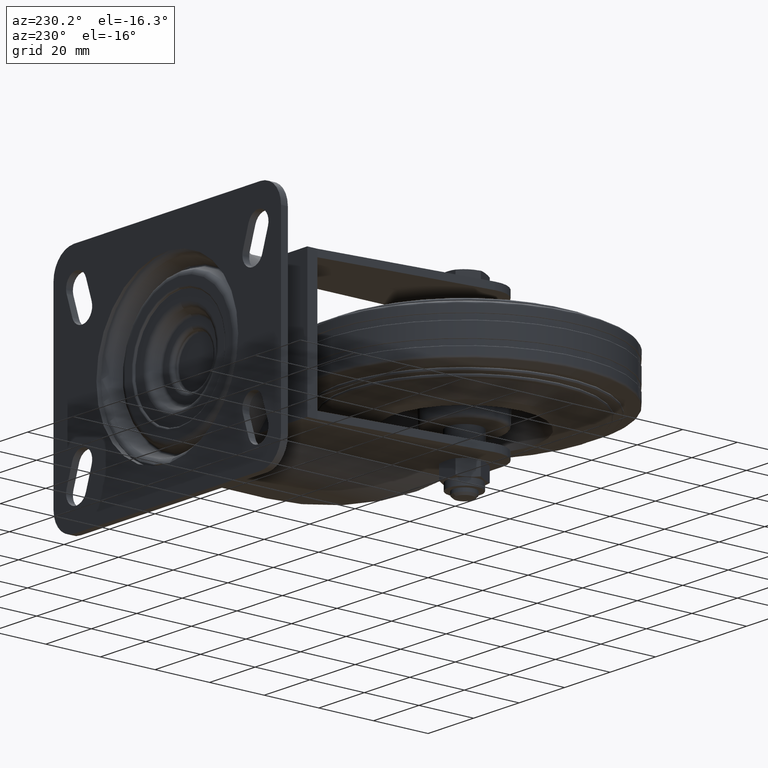
[diagram: clean part render]
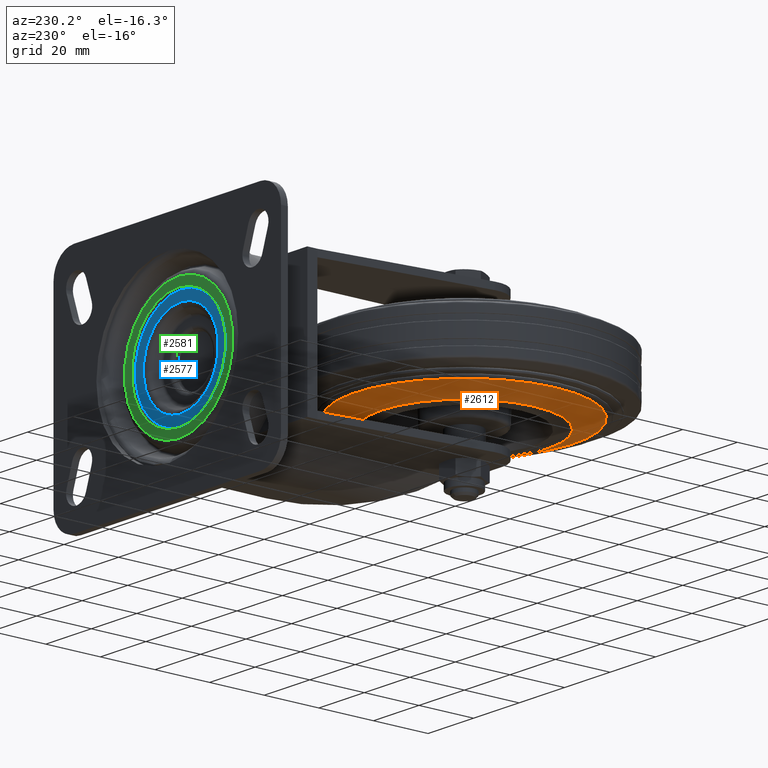
[diagram: same view with three faces highlighted in distinct colors, each labeled with its STEP entity id]
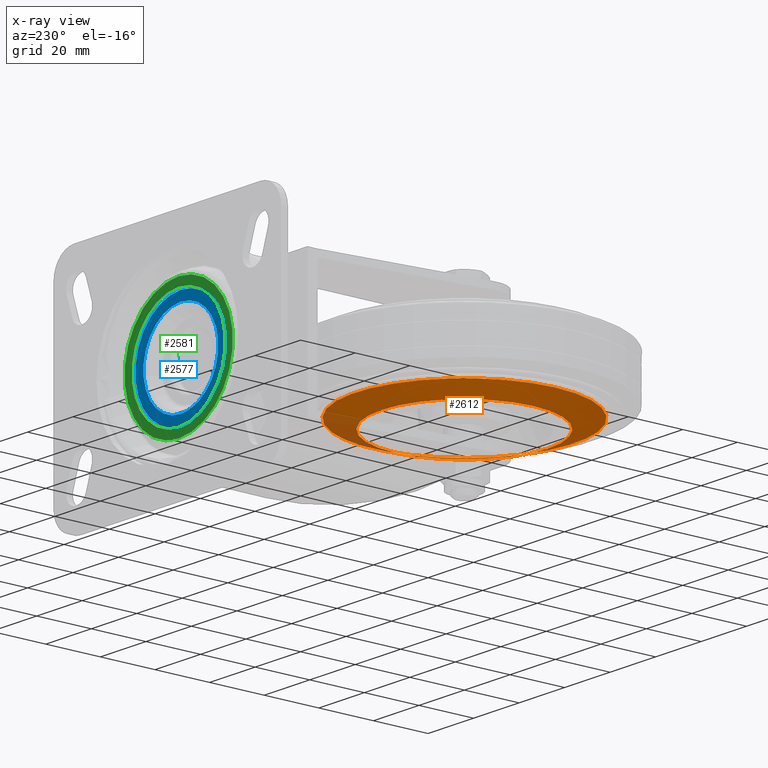
[diagram: x-ray of the same camera — body ghosted, the three highlighted faces saturated]
A machine part, auxiliary view with three faces highlighted in distinct colors.
The next image is the same camera in x-ray (body ghosted, the three faces saturated) — at least one of them is partly hidden behind the body in this view.
Their STEP definitions:

[orange] entity #2612 — the highlighted conical surface has half-angle 71 deg.
#336=LINE('',#4750,#463);
#463=VECTOR('',#3826,30.3955638634393);
#653=FACE_OUTER_BOUND('',#854,.T.);
#854=EDGE_LOOP('',(#2338,#2339,#2340,#2341,#2342));
#1028=CIRCLE('',#3042,30.3955638634393);
#1029=CIRCLE('',#3043,30.3955638634393);
#1030=CIRCLE('',#3045,40.);
#1312=VERTEX_POINT('',#4742);
#1313=VERTEX_POINT('',#4744);
#1314=VERTEX_POINT('',#4748);
#1657=EDGE_CURVE('',#1312,#1313,#1028,.T.);
#1658=EDGE_CURVE('',#1313,#1312,#1029,.T.);
#1659=EDGE_CURVE('',#1314,#1314,#1030,.T.);
#1660=EDGE_CURVE('',#1314,#1313,#336,.T.);
#2338=ORIENTED_EDGE('',*,*,#1659,.T.);
#2339=ORIENTED_EDGE('',*,*,#1660,.T.);
#2340=ORIENTED_EDGE('',*,*,#1657,.F.);
#2341=ORIENTED_EDGE('',*,*,#1658,.F.);
#2342=ORIENTED_EDGE('',*,*,#1660,.F.);
#2464=CONICAL_SURFACE('',#3044,30.3955638634393,1.23918376891597);
#2612=ADVANCED_FACE('',(#653),#2464,.T.);
#3042=AXIS2_PLACEMENT_3D('',#4745,#3818,#3819);
#3043=AXIS2_PLACEMENT_3D('',#4746,#3820,#3821);
#3044=AXIS2_PLACEMENT_3D('',#4747,#3822,#3823);
#3045=AXIS2_PLACEMENT_3D('',#4749,#3824,#3825);
#3818=DIRECTION('center_axis',(6.12323399573677E-17,0.,-1.));
#3819=DIRECTION('ref_axis',(-1.,0.,-6.12323399573677E-17));
#3820=DIRECTION('center_axis',(6.12323399573677E-17,0.,-1.));
#3821=DIRECTION('ref_axis',(-1.,0.,-6.12323399573677E-17));
#3822=DIRECTION('center_axis',(-6.12323399573677E-17,0.,1.));
#3823=DIRECTION('ref_axis',(1.,0.,6.12323399573677E-17));
#3824=DIRECTION('center_axis',(6.12323399573677E-17,0.,-1.));
#3825=DIRECTION('ref_axis',(-1.,0.,-6.12323399573677E-17));
#3826=DIRECTION('',(0.945518575599316,1.15792629714207E-16,-0.32556815445716));
#4742=CARTESIAN_POINT('',(30.3955638634393,-3.72238299936399E-15,-14.8637964389983));
#4744=CARTESIAN_POINT('',(-30.3955638634393,0.,-14.8637964389983));
#4745=CARTESIAN_POINT('Origin',(9.10145036609854E-16,0.,-14.8637964389983));
#4746=CARTESIAN_POINT('Origin',(9.10145036609854E-16,0.,-14.8637964389983));
#4747=CARTESIAN_POINT('Origin',(9.10145036609854E-16,0.,-14.8637964389983));
#4748=CARTESIAN_POINT('',(-40.,0.,-11.5567238671033));
#4749=CARTESIAN_POINT('Origin',(7.07645244623897E-16,0.,-11.5567238671033));
#4750=CARTESIAN_POINT('',(-30.3955638634393,-3.72238299936399E-15,-14.8637964389983));

[blue] entity #2577 — the highlighted planar face has unit normal (0, -1, 0).
#135=FACE_BOUND('',#809,.T.);
#199=PLANE('',#2963);
#618=FACE_OUTER_BOUND('',#808,.T.);
#808=EDGE_LOOP('',(#2205));
#809=EDGE_LOOP('',(#2206));
#983=CIRCLE('',#2961,16.449140521615);
#985=CIRCLE('',#2964,19.975);
#1280=VERTEX_POINT('',#4618);
#1281=VERTEX_POINT('',#4622);
#1600=EDGE_CURVE('',#1280,#1280,#983,.T.);
#1602=EDGE_CURVE('',#1281,#1281,#985,.T.);
#2205=ORIENTED_EDGE('',*,*,#1602,.F.);
#2206=ORIENTED_EDGE('',*,*,#1600,.T.);
#2577=ADVANCED_FACE('',(#618,#135),#199,.F.);
#2961=AXIS2_PLACEMENT_3D('',#4619,#3644,#3645);
#2963=AXIS2_PLACEMENT_3D('',#4621,#3648,#3649);
#2964=AXIS2_PLACEMENT_3D('',#4623,#3650,#3651);
#3644=DIRECTION('center_axis',(0.,-1.,0.));
#3645=DIRECTION('ref_axis',(0.,0.,-1.));
#3648=DIRECTION('center_axis',(0.,-1.,0.));
#3649=DIRECTION('ref_axis',(0.,0.,-1.));
#3650=DIRECTION('center_axis',(0.,-1.,0.));
#3651=DIRECTION('ref_axis',(0.,0.,-1.));
#4618=CARTESIAN_POINT('',(35.,74.7,16.449140521615));
#4619=CARTESIAN_POINT('Origin',(35.,74.7,0.));
#4621=CARTESIAN_POINT('Origin',(51.449140521615,74.7,0.));
#4622=CARTESIAN_POINT('',(35.,74.7,19.975));
#4623=CARTESIAN_POINT('Origin',(35.,74.7,0.));

[green] entity #2581 — the highlighted planar face has unit normal (0, -1, 0).
#136=FACE_BOUND('',#814,.T.);
#200=PLANE('',#2973);
#622=FACE_OUTER_BOUND('',#813,.T.);
#813=EDGE_LOOP('',(#2219));
#814=EDGE_LOOP('',(#2220));
#989=CIRCLE('',#2971,20.675);
#991=CIRCLE('',#2974,23.8022887136805);
#1284=VERTEX_POINT('',#4633);
#1285=VERTEX_POINT('',#4637);
#1607=EDGE_CURVE('',#1284,#1284,#989,.T.);
#1609=EDGE_CURVE('',#1285,#1285,#991,.T.);
#2219=ORIENTED_EDGE('',*,*,#1609,.F.);
#2220=ORIENTED_EDGE('',*,*,#1607,.T.);
#2581=ADVANCED_FACE('',(#622,#136),#200,.F.);
#2971=AXIS2_PLACEMENT_3D('',#4634,#3665,#3666);
#2973=AXIS2_PLACEMENT_3D('',#4636,#3669,#3670);
#2974=AXIS2_PLACEMENT_3D('',#4638,#3671,#3672);
#3665=DIRECTION('center_axis',(0.,-1.,0.));
#3666=DIRECTION('ref_axis',(0.,0.,-1.));
#3669=DIRECTION('center_axis',(0.,-1.,0.));
#3670=DIRECTION('ref_axis',(0.,0.,-1.));
#3671=DIRECTION('center_axis',(0.,-1.,0.));
#3672=DIRECTION('ref_axis',(0.,0.,-1.));
#4633=CARTESIAN_POINT('',(35.,75.5,20.675));
#4634=CARTESIAN_POINT('Origin',(35.,75.5,0.));
#4636=CARTESIAN_POINT('Origin',(55.675,75.5,0.));
#4637=CARTESIAN_POINT('',(35.,75.5,23.8022887136805));
#4638=CARTESIAN_POINT('Origin',(35.,75.5,0.));